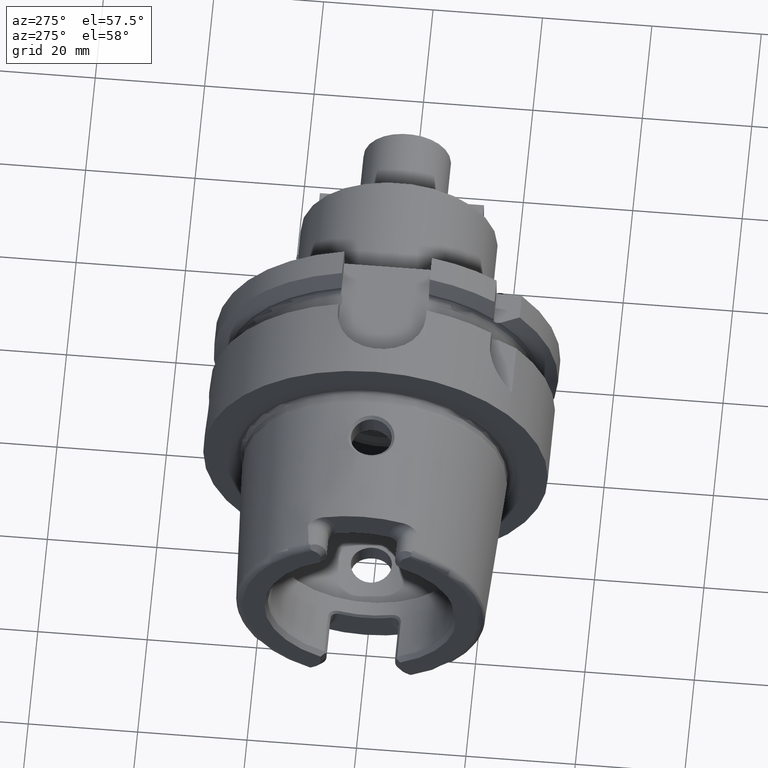
[diagram: clean part render]
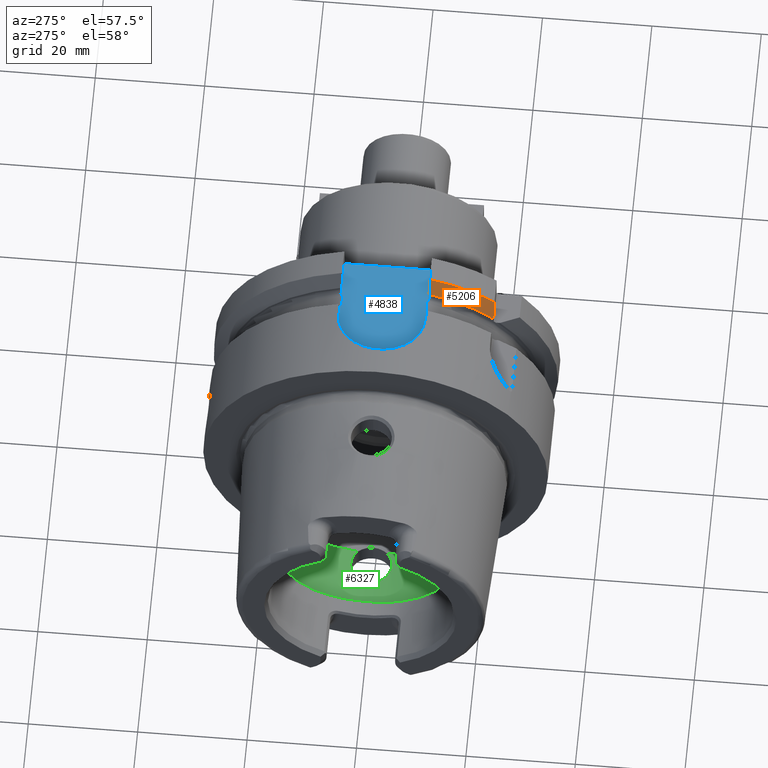
[diagram: same view with three faces highlighted in distinct colors, each labeled with its STEP entity id]
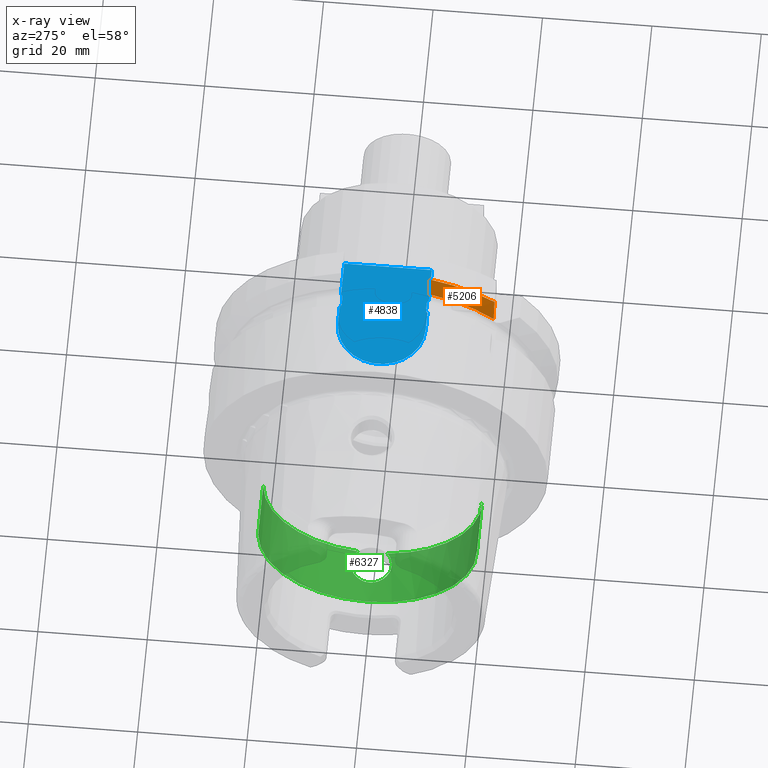
[diagram: x-ray of the same camera — body ghosted, the three highlighted faces saturated]
A machine part, auxiliary view with three faces highlighted in distinct colors.
The next image is the same camera in x-ray (body ghosted, the three faces saturated) — at least one of them is partly hidden behind the body in this view.
Their STEP definitions:

[orange] entity #5206 — the highlighted conical surface has half-angle 60 deg.
#1821=CARTESIAN_POINT('',(2.137749907476E1,-1.985E1,2.445868966237E1));
#1822=CARTESIAN_POINT('',(2.119332414964E1,-1.985E1,2.404785365832E1));
#1823=CARTESIAN_POINT('',(2.083663783525E1,-1.985E1,2.324394677021E1));
#1824=CARTESIAN_POINT('',(2.033810786478E1,-1.985E1,2.209613517637E1));
#1825=CARTESIAN_POINT('',(2.002584660458E1,-1.985E1,2.136066809227E1));
#1826=CARTESIAN_POINT('',(1.9875E1,-1.985E1,2.100115501712E1));
#1828=CARTESIAN_POINT('',(1.9875E1,0.E0,0.E0));
#1829=DIRECTION('',(-1.E0,0.E0,0.E0));
#1830=DIRECTION('',(0.E0,-6.869083679290E-1,7.267440361428E-1));
#1831=AXIS2_PLACEMENT_3D('',#1828,#1829,#1830);
#1833=CARTESIAN_POINT('',(2.137749907476E1,-8.0175E0,3.046259499370E1));
#1834=CARTESIAN_POINT('',(2.120319177205E1,-8.0175E0,3.015040436151E1));
#1835=CARTESIAN_POINT('',(2.085948637578E1,-8.0175E0,2.953419360045E1));
#1836=CARTESIAN_POINT('',(2.035883321168E1,-8.0175E0,2.863469594323E1));
#1837=CARTESIAN_POINT('',(2.003465909713E1,-8.0175E0,2.805095548455E1));
#1838=CARTESIAN_POINT('',(1.9875E1,-8.0175E0,2.776311772483E1));
#1840=CARTESIAN_POINT('',(2.137749907476E1,0.E0,0.E0));
#1841=DIRECTION('',(1.E0,0.E0,0.E0));
#1842=DIRECTION('',(0.E0,-2.545238095238E-1,9.670665077364E-1));
#1843=AXIS2_PLACEMENT_3D('',#1840,#1841,#1842);
#3119=CARTESIAN_POINT('',(1.9875E1,-8.0175E0,2.776311772483E1));
#3120=VERTEX_POINT('',#3119);
#3123=VERTEX_POINT('',#1833);
#3165=CARTESIAN_POINT('',(2.137749907476E1,-1.985E1,2.445868966237E1));
#3167=VERTEX_POINT('',#3165);
#3181=CARTESIAN_POINT('',(1.9875E1,-1.985E1,2.100115501712E1));
#3183=VERTEX_POINT('',#3181);
#5195=CARTESIAN_POINT('',(2.062624953738E1,0.E0,0.E0));
#5196=DIRECTION('',(1.E0,0.E0,0.E0));
#5197=DIRECTION('',(0.E0,-1.E0,0.E0));
#5198=AXIS2_PLACEMENT_3D('',#5195,#5196,#5197);
#5199=CONICAL_SURFACE('',#5198,3.019879763210E1,6.E1);
#5200=ORIENTED_EDGE('',*,*,#5108,.T.);
#5201=ORIENTED_EDGE('',*,*,#5165,.T.);
#5202=ORIENTED_EDGE('',*,*,#4866,.F.);
#5203=ORIENTED_EDGE('',*,*,#4988,.T.);
#5204=EDGE_LOOP('',(#5200,#5201,#5202,#5203));
#5205=FACE_OUTER_BOUND('',#5204,.F.);
#5206=ADVANCED_FACE('',(#5205),#5199,.T.);
#1827=B_SPLINE_CURVE_WITH_KNOTS('',3,(#1821,#1822,#1823,#1824,#1825,#1826),
.UNSPECIFIED.,.F.,.F.,(4,1,1,4),(0.E0,3.333333333333E-1,6.666666666667E-1,1.E0),
.UNSPECIFIED.);
#1832=CIRCLE('',#1831,2.889759526419E1);
#1839=B_SPLINE_CURVE_WITH_KNOTS('',3,(#1833,#1834,#1835,#1836,#1837,#1838),
.UNSPECIFIED.,.F.,.F.,(4,1,1,4),(0.E0,3.333333333333E-1,6.666666666667E-1,1.E0),
.UNSPECIFIED.);
#1844=CIRCLE('',#1843,3.15E1);
#4866=EDGE_CURVE('',#3123,#3120,#1839,.T.);
#4988=EDGE_CURVE('',#3123,#3167,#1844,.T.);
#5108=EDGE_CURVE('',#3167,#3183,#1827,.T.);
#5165=EDGE_CURVE('',#3183,#3120,#1832,.T.);

[blue] entity #4838 — the highlighted planar face has unit normal (0, 0, 1).
#1235=CARTESIAN_POINT('',(1.670911310946E1,8.0175E0,2.64E1));
#1236=CARTESIAN_POINT('',(1.673352951994E1,7.979074793464E0,2.64E1));
#1237=CARTESIAN_POINT('',(1.678346969240E1,7.908219856299E0,2.64E1));
#1238=CARTESIAN_POINT('',(1.686140323483E1,7.821166046425E0,2.64E1));
#1239=CARTESIAN_POINT('',(1.694700550698E1,7.751989508750E0,2.64E1));
#1240=CARTESIAN_POINT('',(1.703710106542E1,7.709022207033E0,2.64E1));
#1241=CARTESIAN_POINT('',(1.709569678300E1,7.7E0,2.64E1));
#1242=CARTESIAN_POINT('',(1.7125E1,7.7E0,2.64E1));
#1286=CARTESIAN_POINT('',(1.7125E1,-7.7E0,2.64E1));
#1287=CARTESIAN_POINT('',(1.709801542874E1,-7.7E0,2.64E1));
#1288=CARTESIAN_POINT('',(1.704428225575E1,-7.707480820281E0,2.64E1));
#1289=CARTESIAN_POINT('',(1.696015728326E1,-7.744711750978E0,2.64E1));
#1290=CARTESIAN_POINT('',(1.688520085667E1,-7.800550899081E0,2.64E1));
#1291=CARTESIAN_POINT('',(1.681986238020E1,-7.866117342831E0,2.64E1));
#1292=CARTESIAN_POINT('',(1.676061128616E1,-7.939936204551E0,2.64E1));
#1293=CARTESIAN_POINT('',(1.672578491309E1,-7.991262830607E0,2.64E1));
#1294=CARTESIAN_POINT('',(1.670911310946E1,-8.0175E0,2.64E1));
#1381=CARTESIAN_POINT('',(1.8875E1,7.7E0,2.64E1));
#1382=CARTESIAN_POINT('',(1.890430468861E1,7.7E0,2.64E1));
#1383=CARTESIAN_POINT('',(1.896290280766E1,7.708993215977E0,2.64E1));
#1384=CARTESIAN_POINT('',(1.905331742183E1,7.752198019553E0,2.64E1));
#1385=CARTESIAN_POINT('',(1.913860453300E1,7.821194226188E0,2.64E1));
#1386=CARTESIAN_POINT('',(1.921661446474E1,7.908317855978E0,2.64E1));
#1387=CARTESIAN_POINT('',(1.926649394598E1,7.979111722839E0,2.64E1));
#1388=CARTESIAN_POINT('',(1.929088689054E1,8.0175E0,2.64E1));
#1436=CARTESIAN_POINT('',(1.929088689054E1,-8.0175E0,2.64E1));
#1437=CARTESIAN_POINT('',(1.927417922618E1,-7.991206394948E0,2.64E1));
#1438=CARTESIAN_POINT('',(1.923922993687E1,-7.939709103662E0,2.64E1));
#1439=CARTESIAN_POINT('',(1.917963781936E1,-7.865495822527E0,2.64E1));
#1440=CARTESIAN_POINT('',(1.911354741171E1,-7.799456458601E0,2.64E1));
#1441=CARTESIAN_POINT('',(1.903907332419E1,-7.744292367168E0,2.64E1));
#1442=CARTESIAN_POINT('',(1.895500739860E1,-7.707298016794E0,2.64E1));
#1443=CARTESIAN_POINT('',(1.890171865616E1,-7.7E0,2.64E1));
#1444=CARTESIAN_POINT('',(1.8875E1,-7.7E0,2.64E1));
#1491=DIRECTION('',(1.E0,0.E0,0.E0));
#1492=VECTOR('',#1491,1.75E0);
#1493=CARTESIAN_POINT('',(1.7125E1,-7.7E0,2.64E1));
#1494=LINE('',#1493,#1492);
#1499=DIRECTION('',(1.E0,0.E0,0.E0));
#1500=VECTOR('',#1499,1.75E0);
#1501=CARTESIAN_POINT('',(1.7125E1,7.7E0,2.64E1));
#1502=LINE('',#1501,#1500);
#1508=DIRECTION('',(1.E0,0.E0,0.E0));
#1509=VECTOR('',#1508,3.741613109456E0);
#1510=CARTESIAN_POINT('',(1.29675E1,-8.0175E0,2.64E1));
#1511=LINE('',#1510,#1509);
#1512=CARTESIAN_POINT('',(1.29675E1,0.E0,2.64E1));
#1513=DIRECTION('',(0.E0,0.E0,1.E0));
#1514=DIRECTION('',(0.E0,1.E0,0.E0));
#1515=AXIS2_PLACEMENT_3D('',#1512,#1513,#1514);
#1517=DIRECTION('',(-1.E0,0.E0,0.E0));
#1518=VECTOR('',#1517,3.741613109456E0);
#1519=CARTESIAN_POINT('',(1.670911310946E1,8.0175E0,2.64E1));
#1520=LINE('',#1519,#1518);
#1525=DIRECTION('',(1.E0,0.E0,0.E0));
#1526=VECTOR('',#1525,6.709113109456E0);
#1527=CARTESIAN_POINT('',(1.929088689054E1,-8.0175E0,2.64E1));
#1528=LINE('',#1527,#1526);
#1561=DIRECTION('',(-1.E0,0.E0,0.E0));
#1562=VECTOR('',#1561,6.709113109456E0);
#1563=CARTESIAN_POINT('',(2.6E1,8.0175E0,2.64E1));
#1564=LINE('',#1563,#1562);
#1688=DIRECTION('',(0.E0,1.E0,0.E0));
#1689=VECTOR('',#1688,1.6035E1);
#1690=CARTESIAN_POINT('',(2.6E1,-8.0175E0,2.64E1));
#1691=LINE('',#1690,#1689);
#3033=CARTESIAN_POINT('',(1.29675E1,8.0175E0,2.64E1));
#3034=CARTESIAN_POINT('',(1.29675E1,-8.0175E0,2.64E1));
#3035=VERTEX_POINT('',#3033);
#3036=VERTEX_POINT('',#3034);
#3037=CARTESIAN_POINT('',(1.670911310946E1,-8.0175E0,2.64E1));
#3038=VERTEX_POINT('',#3037);
#3043=CARTESIAN_POINT('',(1.670911310946E1,8.0175E0,2.64E1));
#3044=VERTEX_POINT('',#3043);
#3091=CARTESIAN_POINT('',(1.929088689054E1,-8.0175E0,2.64E1));
#3092=CARTESIAN_POINT('',(2.6E1,-8.0175E0,2.64E1));
#3093=VERTEX_POINT('',#3091);
#3094=VERTEX_POINT('',#3092);
#3095=CARTESIAN_POINT('',(2.6E1,8.0175E0,2.64E1));
#3096=CARTESIAN_POINT('',(1.929088689054E1,8.0175E0,2.64E1));
#3097=VERTEX_POINT('',#3095);
#3098=VERTEX_POINT('',#3096);
#3111=VERTEX_POINT('',#1242);
#3112=VERTEX_POINT('',#1286);
#3113=CARTESIAN_POINT('',(1.8875E1,7.7E0,2.64E1));
#3114=VERTEX_POINT('',#3113);
#3115=CARTESIAN_POINT('',(1.8875E1,-7.7E0,2.64E1));
#3116=VERTEX_POINT('',#3115);
#4813=CARTESIAN_POINT('',(0.E0,0.E0,2.64E1));
#4814=DIRECTION('',(0.E0,0.E0,1.E0));
#4815=DIRECTION('',(1.E0,0.E0,0.E0));
#4816=AXIS2_PLACEMENT_3D('',#4813,#4814,#4815);
#4817=PLANE('',#4816);
#4819=ORIENTED_EDGE('',*,*,#4818,.F.);
#4821=ORIENTED_EDGE('',*,*,#4820,.F.);
#4823=ORIENTED_EDGE('',*,*,#4822,.F.);
#4824=ORIENTED_EDGE('',*,*,#4618,.T.);
#4825=ORIENTED_EDGE('',*,*,#4807,.T.);
#4826=ORIENTED_EDGE('',*,*,#4723,.T.);
#4828=ORIENTED_EDGE('',*,*,#4827,.F.);
#4830=ORIENTED_EDGE('',*,*,#4829,.F.);
#4832=ORIENTED_EDGE('',*,*,#4831,.F.);
#4833=ORIENTED_EDGE('',*,*,#4751,.T.);
#4834=ORIENTED_EDGE('',*,*,#4794,.F.);
#4835=ORIENTED_EDGE('',*,*,#4641,.T.);
#4836=EDGE_LOOP('',(#4819,#4821,#4823,#4824,#4825,#4826,#4828,#4830,#4832,#4833,
#4834,#4835));
#4837=FACE_OUTER_BOUND('',#4836,.F.);
#4838=ADVANCED_FACE('',(#4837),#4817,.T.);
#1243=B_SPLINE_CURVE_WITH_KNOTS('',3,(#1235,#1236,#1237,#1238,#1239,#1240,#1241,
#1242),.UNSPECIFIED.,.F.,.F.,(4,1,1,1,1,4),(0.E0,2.E-1,4.E-1,6.E-1,8.E-1,1.E0),
.UNSPECIFIED.);
#1295=B_SPLINE_CURVE_WITH_KNOTS('',3,(#1286,#1287,#1288,#1289,#1290,#1291,#1292,
#1293,#1294),.UNSPECIFIED.,.F.,.F.,(4,1,1,1,1,1,4),(0.E0,1.666666666667E-1,
3.333333333333E-1,5.E-1,6.666666666667E-1,8.333333333333E-1,1.E0),
.UNSPECIFIED.);
#1389=B_SPLINE_CURVE_WITH_KNOTS('',3,(#1381,#1382,#1383,#1384,#1385,#1386,#1387,
#1388),.UNSPECIFIED.,.F.,.F.,(4,1,1,1,1,4),(0.E0,2.E-1,4.E-1,6.E-1,8.E-1,1.E0),
.UNSPECIFIED.);
#1445=B_SPLINE_CURVE_WITH_KNOTS('',3,(#1436,#1437,#1438,#1439,#1440,#1441,#1442,
#1443,#1444),.UNSPECIFIED.,.F.,.F.,(4,1,1,1,1,1,4),(0.E0,1.666666666667E-1,
3.333333333333E-1,5.E-1,6.666666666667E-1,8.333333333333E-1,1.E0),
.UNSPECIFIED.);
#1516=CIRCLE('',#1515,8.0175E0);
#4618=EDGE_CURVE('',#3044,#3111,#1243,.T.);
#4641=EDGE_CURVE('',#3112,#3038,#1295,.T.);
#4723=EDGE_CURVE('',#3114,#3098,#1389,.T.);
#4751=EDGE_CURVE('',#3093,#3116,#1445,.T.);
#4794=EDGE_CURVE('',#3112,#3116,#1494,.T.);
#4807=EDGE_CURVE('',#3111,#3114,#1502,.T.);
#4818=EDGE_CURVE('',#3036,#3038,#1511,.T.);
#4820=EDGE_CURVE('',#3035,#3036,#1516,.T.);
#4822=EDGE_CURVE('',#3044,#3035,#1520,.T.);
#4827=EDGE_CURVE('',#3097,#3098,#1564,.T.);
#4829=EDGE_CURVE('',#3094,#3097,#1691,.T.);
#4831=EDGE_CURVE('',#3093,#3094,#1528,.T.);

[green] entity #6327 — the highlighted cylindrical surface (partial cylindrical patch) has radius 20 mm, axis along (1, 0, 0).
#2439=CARTESIAN_POINT('',(-1.275E1,0.E0,-2.E1));
#2440=CARTESIAN_POINT('',(-1.275E1,1.970797777845E-1,-2.E1));
#2441=CARTESIAN_POINT('',(-1.271933909344E1,5.855820587090E-1,
-1.999421722836E1));
#2442=CARTESIAN_POINT('',(-1.258308604776E1,1.156988201512E0,
-1.996912456378E1));
#2443=CARTESIAN_POINT('',(-1.236036877994E1,1.698340885752E0,
-1.993006069771E1));
#2444=CARTESIAN_POINT('',(-1.205588954782E1,2.199795991820E0,
-1.988058916012E1));
#2445=CARTESIAN_POINT('',(-1.167538777807E1,2.649620270025E0,
-1.982521080355E1));
#2446=CARTESIAN_POINT('',(-1.122923157921E1,3.034483606922E0,
-1.976949737947E1));
#2447=CARTESIAN_POINT('',(-1.073042246945E1,3.344039011522E0,
-1.971907966661E1));
#2448=CARTESIAN_POINT('',(-1.018735452757E1,3.573605383178E0,
-1.967844161215E1));
#2449=CARTESIAN_POINT('',(-9.606410769133E0,3.716516435875E0,
-1.965172086194E1));
#2450=CARTESIAN_POINT('',(-9.030535729406E0,3.763361658231E0,
-1.964272645946E1));
#2451=CARTESIAN_POINT('',(-8.506781906634E0,3.728806167728E0,
-1.964936056965E1));
#2452=CARTESIAN_POINT('',(-8.021198772650E0,3.630984566241E0,
-1.966777436361E1));
#2453=CARTESIAN_POINT('',(-7.558768926129E0,3.473542575992E0,
-1.969635625599E1));
#2454=CARTESIAN_POINT('',(-7.115695543339E0,3.254813817759E0,
-1.973391032126E1));
#2455=CARTESIAN_POINT('',(-6.705028812647E0,2.979233365007E0,
-1.977763044789E1));
#2456=CARTESIAN_POINT('',(-6.460595531496E0,2.764184924848E0,
-1.980840609324E1));
#2457=CARTESIAN_POINT('',(-6.344997998398E0,2.648294615690E0,
-1.982388800484E1));
#2459=CARTESIAN_POINT('',(-6.344997998398E0,-2.648294615690E0,
-1.982388800484E1));
#2460=CARTESIAN_POINT('',(-6.462044697935E0,-2.765637761618E0,
-1.980821200720E1));
#2461=CARTESIAN_POINT('',(-6.709671551165E0,-2.983133891878E0,
-1.977705807675E1));
#2462=CARTESIAN_POINT('',(-7.126034905943E0,-3.261089757929E0,
-1.973288133904E1));
#2463=CARTESIAN_POINT('',(-7.575584049692E0,-3.480770468375E0,
-1.969508061270E1));
#2464=CARTESIAN_POINT('',(-8.044905845670E0,-3.637571668188E0,
-1.966655338525E1));
#2465=CARTESIAN_POINT('',(-8.536725270309E0,-3.732857206466E0,
-1.964858692526E1));
#2466=CARTESIAN_POINT('',(-9.064387630539E0,-3.763073563083E0,
-1.964278192788E1));
#2467=CARTESIAN_POINT('',(-9.641487703756E0,-3.710628371547E0,
-1.965284319508E1));
#2468=CARTESIAN_POINT('',(-1.021950864124E1,-3.562603616823E0,
-1.968045141989E1));
#2469=CARTESIAN_POINT('',(-1.075710456701E1,-3.329816746764E0,
-1.972149542356E1));
#2470=CARTESIAN_POINT('',(-1.124928271618E1,-3.019350214938E0,
-1.977181687259E1));
#2471=CARTESIAN_POINT('',(-1.169009647422E1,-2.634399272321E0,
-1.982723525020E1));
#2472=CARTESIAN_POINT('',(-1.206569000544E1,-2.185760381770E0,
-1.988212354227E1));
#2473=CARTESIAN_POINT('',(-1.236610944677E1,-1.686459337541E0,
-1.993104484011E1));
#2474=CARTESIAN_POINT('',(-1.258557429564E1,-1.148507897483E0,
-1.996957873946E1));
#2475=CARTESIAN_POINT('',(-1.271982075329E1,-5.810738531371E-1,
-1.999430846292E1));
#2476=CARTESIAN_POINT('',(-1.275E1,-1.955235226658E-1,-2.E1));
#2477=CARTESIAN_POINT('',(-1.275E1,0.E0,-2.E1));
#2479=CARTESIAN_POINT('',(-6.344997998398E0,0.E0,0.E0));
#2480=DIRECTION('',(-1.E0,0.E0,0.E0));
#2481=DIRECTION('',(0.E0,-1.324147307845E-1,-9.911944002421E-1));
#2482=AXIS2_PLACEMENT_3D('',#2479,#2480,#2481);
#2484=DIRECTION('',(-1.E0,0.E0,0.E0));
#2485=VECTOR('',#2484,1.057256643630E1);
#2486=CARTESIAN_POINT('',(-6.344997998398E0,-2.E1,0.E0));
#2487=LINE('',#2486,#2485);
#2488=DIRECTION('',(-1.E0,0.E0,0.E0));
#2489=VECTOR('',#2488,1.057256643630E1);
#2490=CARTESIAN_POINT('',(-6.344997998398E0,2.E1,0.E0));
#2491=LINE('',#2490,#2489);
#2492=CARTESIAN_POINT('',(-6.344997998398E0,0.E0,0.E0));
#2493=DIRECTION('',(-1.E0,0.E0,0.E0));
#2494=DIRECTION('',(0.E0,1.E0,0.E0));
#2495=AXIS2_PLACEMENT_3D('',#2492,#2493,#2494);
#2497=CARTESIAN_POINT('',(-6.344997998398E0,2.648294615690E0,
-1.982388800484E1));
#2530=CARTESIAN_POINT('',(-6.344997998398E0,-2.648294615690E0,
-1.982388800484E1));
#2713=CARTESIAN_POINT('',(-1.691756443470E1,0.E0,0.E0));
#2714=DIRECTION('',(-1.E0,0.E0,0.E0));
#2715=DIRECTION('',(0.E0,1.E0,0.E0));
#2716=AXIS2_PLACEMENT_3D('',#2713,#2714,#2715);
#2788=CARTESIAN_POINT('',(-6.344997998398E0,2.E1,0.E0));
#2789=VERTEX_POINT('',#2788);
#2790=CARTESIAN_POINT('',(-1.691756443470E1,2.E1,0.E0));
#2791=VERTEX_POINT('',#2790);
#2800=CARTESIAN_POINT('',(-6.344997998398E0,-2.E1,0.E0));
#2801=VERTEX_POINT('',#2800);
#2802=CARTESIAN_POINT('',(-1.691756443470E1,-2.E1,0.E0));
#2803=VERTEX_POINT('',#2802);
#2973=VERTEX_POINT('',#2497);
#2975=VERTEX_POINT('',#2530);
#2976=VERTEX_POINT('',#2439);
#6310=CARTESIAN_POINT('',(-3.41E1,0.E0,0.E0));
#6311=DIRECTION('',(1.E0,0.E0,0.E0));
#6312=DIRECTION('',(0.E0,-1.E0,0.E0));
#6313=AXIS2_PLACEMENT_3D('',#6310,#6311,#6312);
#6314=CYLINDRICAL_SURFACE('',#6313,2.E1);
#6315=ORIENTED_EDGE('',*,*,#6264,.F.);
#6316=ORIENTED_EDGE('',*,*,#6032,.F.);
#6318=ORIENTED_EDGE('',*,*,#6317,.T.);
#6319=ORIENTED_EDGE('',*,*,#6303,.T.);
#6321=ORIENTED_EDGE('',*,*,#6320,.F.);
#6322=ORIENTED_EDGE('',*,*,#6299,.F.);
#6324=ORIENTED_EDGE('',*,*,#6323,.T.);
#6325=EDGE_LOOP('',(#6315,#6316,#6318,#6319,#6321,#6322,#6324));
#6326=FACE_OUTER_BOUND('',#6325,.F.);
#6327=ADVANCED_FACE('',(#6326),#6314,.F.);
#2458=B_SPLINE_CURVE_WITH_KNOTS('',3,(#2439,#2440,#2441,#2442,#2443,#2444,#2445,
#2446,#2447,#2448,#2449,#2450,#2451,#2452,#2453,#2454,#2455,#2456,#2457),
.UNSPECIFIED.,.F.,.F.,(4,1,1,1,1,1,1,1,1,1,1,1,1,1,1,1,4),(0.E0,6.25E-2,1.25E-1,
1.875E-1,2.5E-1,3.125E-1,3.75E-1,4.375E-1,5.E-1,5.625E-1,6.25E-1,6.875E-1,
7.5E-1,8.125E-1,8.75E-1,9.375E-1,1.E0),.UNSPECIFIED.);
#2478=B_SPLINE_CURVE_WITH_KNOTS('',3,(#2459,#2460,#2461,#2462,#2463,#2464,#2465,
#2466,#2467,#2468,#2469,#2470,#2471,#2472,#2473,#2474,#2475,#2476,#2477),
.UNSPECIFIED.,.F.,.F.,(4,1,1,1,1,1,1,1,1,1,1,1,1,1,1,1,4),(0.E0,6.25E-2,1.25E-1,
1.875E-1,2.5E-1,3.125E-1,3.75E-1,4.375E-1,5.E-1,5.625E-1,6.25E-1,6.875E-1,
7.5E-1,8.125E-1,8.75E-1,9.375E-1,1.E0),.UNSPECIFIED.);
#2483=CIRCLE('',#2482,2.E1);
#2496=CIRCLE('',#2495,2.E1);
#2717=CIRCLE('',#2716,2.E1);
#6032=EDGE_CURVE('',#2975,#2976,#2478,.T.);
#6264=EDGE_CURVE('',#2976,#2973,#2458,.T.);
#6299=EDGE_CURVE('',#2789,#2791,#2491,.T.);
#6303=EDGE_CURVE('',#2801,#2803,#2487,.T.);
#6317=EDGE_CURVE('',#2975,#2801,#2483,.T.);
#6320=EDGE_CURVE('',#2791,#2803,#2717,.T.);
#6323=EDGE_CURVE('',#2789,#2973,#2496,.T.);